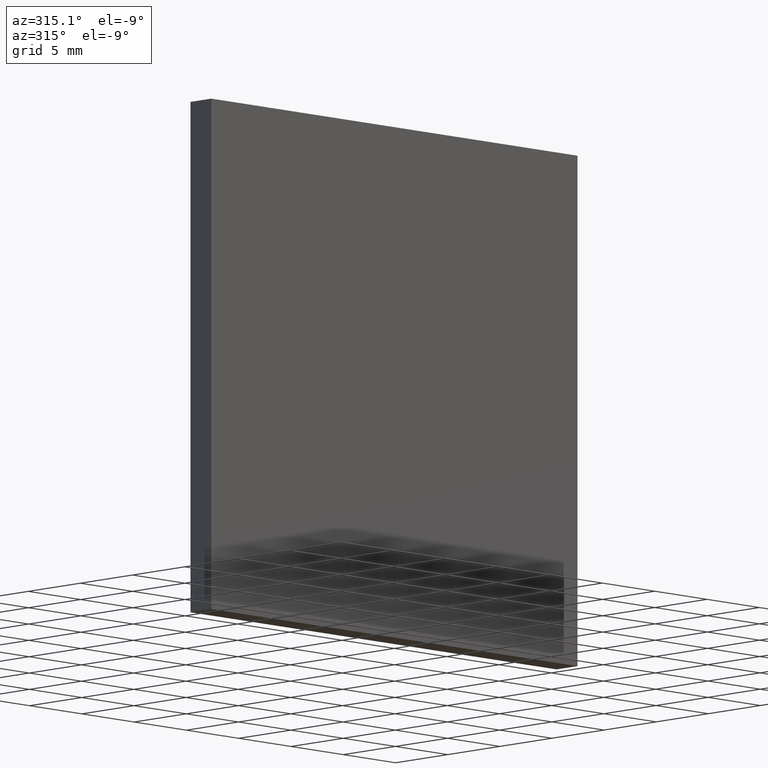
[diagram: clean part render]
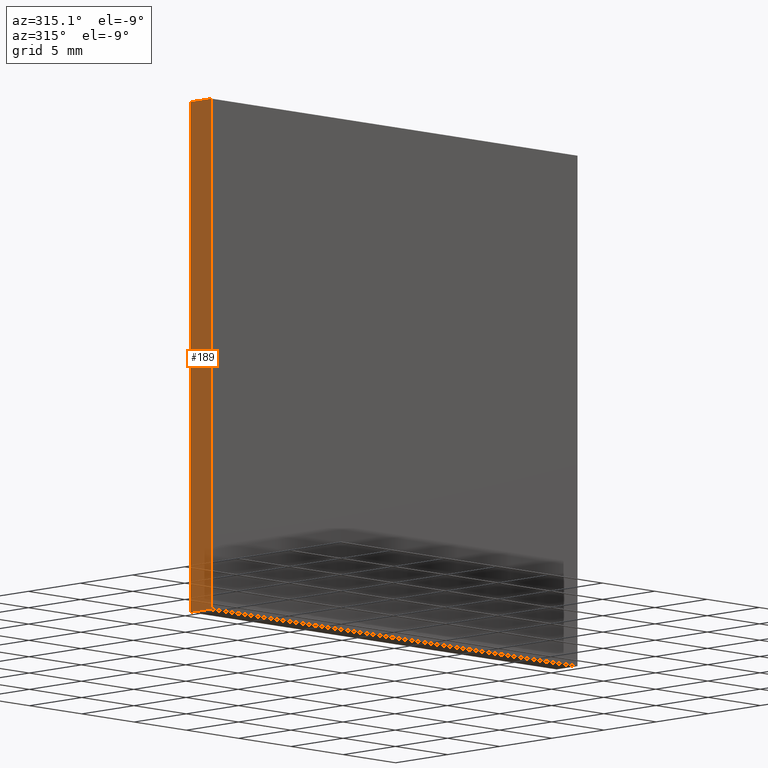
[diagram: same view with one face highlighted and labeled with its STEP entity id]
A machine part, auxiliary view. The second image highlights one B-rep face of the part: STEP entity #189.
In plain terms, the highlighted planar face has unit normal (1, 0, 0).
Its self-contained STEP definition (entity closure, byte-faithful):
#5 = ORIENTED_EDGE ( 'NONE', *, *, #105, .F. ) ;
#6 = EDGE_CURVE ( 'NONE', #17, #129, #75, .T. ) ;
#8 = AXIS2_PLACEMENT_3D ( 'NONE', #190, #51, #64 ) ;
#12 = VECTOR ( 'NONE', #37, 1000.000000000000000 ) ;
#17 = VERTEX_POINT ( 'NONE', #193 ) ;
#20 = LINE ( 'NONE', #36, #140 ) ;
#34 = ORIENTED_EDGE ( 'NONE', *, *, #77, .F. ) ;
#36 = CARTESIAN_POINT ( 'NONE',  ( -17.50000000000000000, 2.000000000000000000, 17.50000000000000000 ) ) ;
#37 = DIRECTION ( 'NONE',  ( -0.0000000000000000000, -1.000000000000000000, -0.0000000000000000000 ) ) ;
#45 = CARTESIAN_POINT ( 'NONE',  ( -17.50000000000000000, 2.000000000000000000, -17.50000000000000000 ) ) ;
#47 = LINE ( 'NONE', #78, #12 ) ;
#51 = DIRECTION ( 'NONE',  ( 1.000000000000000000, 0.0000000000000000000, 0.0000000000000000000 ) ) ;
#60 = DIRECTION ( 'NONE',  ( 0.0000000000000000000, 0.0000000000000000000, 1.000000000000000000 ) ) ;
#64 = DIRECTION ( 'NONE',  ( 0.0000000000000000000, 0.0000000000000000000, -1.000000000000000000 ) ) ;
#68 = VECTOR ( 'NONE', #143, 1000.000000000000000 ) ;
#75 = LINE ( 'NONE', #128, #68 ) ;
#77 = EDGE_CURVE ( 'NONE', #167, #171, #175, .T. ) ;
#78 = CARTESIAN_POINT ( 'NONE',  ( -17.50000000000000000, 2.000000000000000000, -17.50000000000000000 ) ) ;
#79 = EDGE_LOOP ( 'NONE', ( #164, #5, #34, #161 ) ) ;
#81 = PLANE ( 'NONE',  #8 ) ;
#97 = CARTESIAN_POINT ( 'NONE',  ( -17.50000000000000000, 2.000000000000000000, -17.50000000000000000 ) ) ;
#105 = EDGE_CURVE ( 'NONE', #171, #129, #20, .T. ) ;
#117 = CARTESIAN_POINT ( 'NONE',  ( -17.50000000000000000, 2.000000000000000000, 17.50000000000000000 ) ) ;
#128 = CARTESIAN_POINT ( 'NONE',  ( -17.50000000000000000, 0.0000000000000000000, -17.50000000000000000 ) ) ;
#129 = VERTEX_POINT ( 'NONE', #177 ) ;
#130 = EDGE_CURVE ( 'NONE', #167, #17, #47, .T. ) ;
#140 = VECTOR ( 'NONE', #170, 1000.000000000000000 ) ;
#143 = DIRECTION ( 'NONE',  ( 0.0000000000000000000, 0.0000000000000000000, 1.000000000000000000 ) ) ;
#146 = VECTOR ( 'NONE', #60, 1000.000000000000000 ) ;
#155 = FACE_OUTER_BOUND ( 'NONE', #79, .T. ) ;
#161 = ORIENTED_EDGE ( 'NONE', *, *, #130, .T. ) ;
#164 = ORIENTED_EDGE ( 'NONE', *, *, #6, .T. ) ;
#167 = VERTEX_POINT ( 'NONE', #97 ) ;
#170 = DIRECTION ( 'NONE',  ( -0.0000000000000000000, -1.000000000000000000, -0.0000000000000000000 ) ) ;
#171 = VERTEX_POINT ( 'NONE', #117 ) ;
#175 = LINE ( 'NONE', #45, #146 ) ;
#177 = CARTESIAN_POINT ( 'NONE',  ( -17.50000000000000000, 0.0000000000000000000, 17.50000000000000000 ) ) ;
#189 = ADVANCED_FACE ( 'NONE', ( #155 ), #81, .F. ) ;
#190 = CARTESIAN_POINT ( 'NONE',  ( -17.50000000000000000, 2.000000000000000000, -17.50000000000000000 ) ) ;
#193 = CARTESIAN_POINT ( 'NONE',  ( -17.50000000000000000, 0.0000000000000000000, -17.50000000000000000 ) ) ;